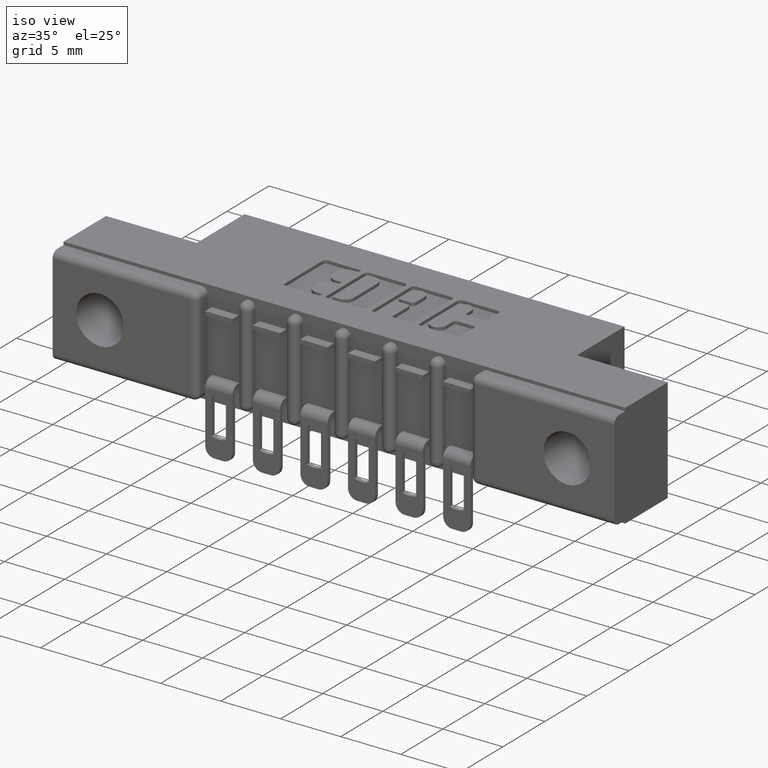
[diagram: clean part render]
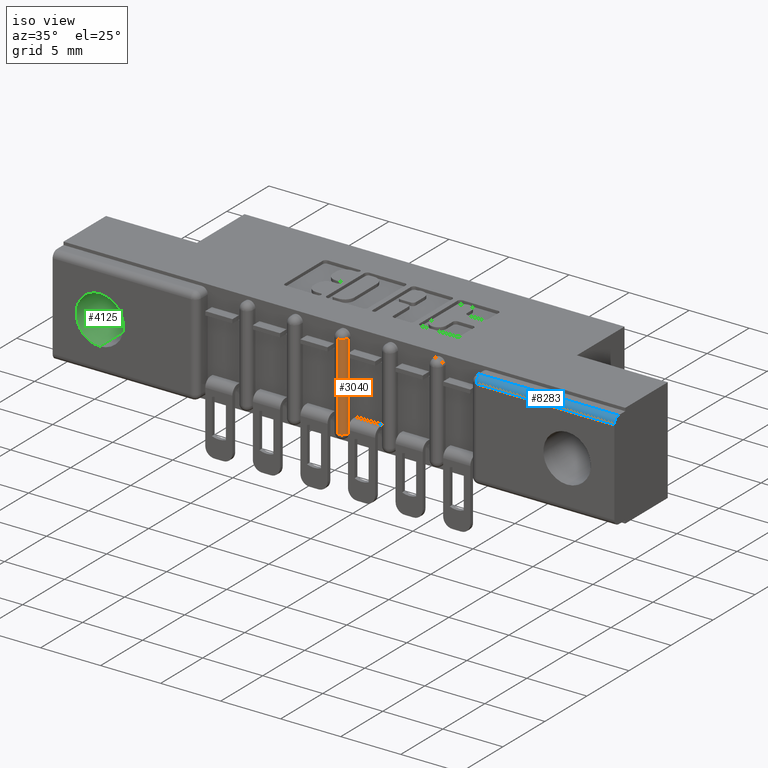
[diagram: same view with three faces highlighted in distinct colors, each labeled with its STEP entity id]
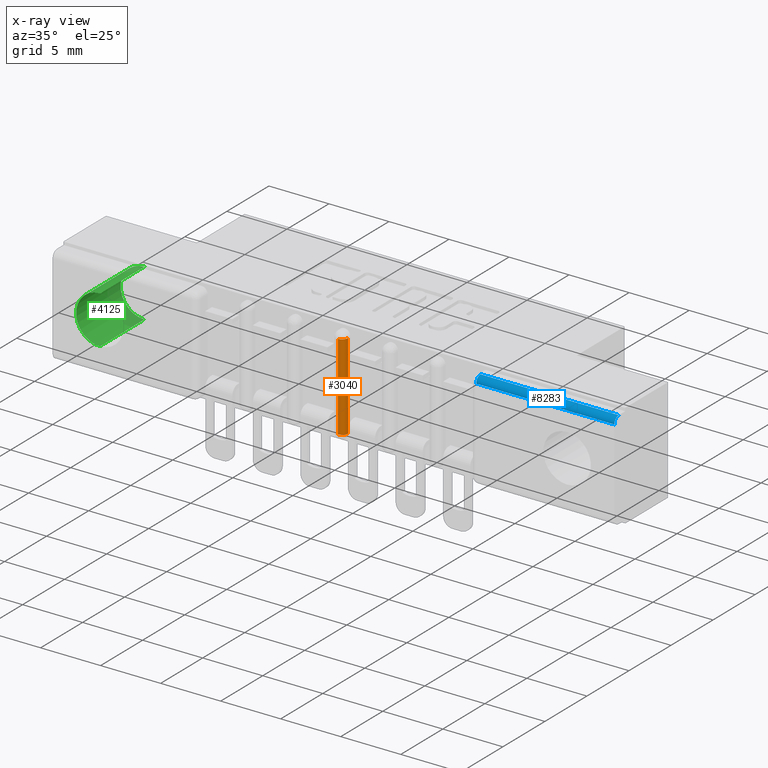
[diagram: x-ray of the same camera — body ghosted, the three highlighted faces saturated]
A machine part, iso view with three faces highlighted in distinct colors.
The next image is the same camera in x-ray (body ghosted, the three faces saturated) — at least one of them is partly hidden behind the body in this view.
Their STEP definitions:

[orange] entity #3040 — the highlighted cylindrical surface (edge-blend (fillet) strip) has radius 0.508 mm, axis along (0, 0, -1).
#59 = ORIENTED_EDGE ( 'NONE', *, *, #1088, .F. ) ;
#301 = CARTESIAN_POINT ( 'NONE',  ( 0.9210000000000000400, 0.02000000000000000000, -0.02999999999999923200 ) ) ;
#445 = DIRECTION ( 'NONE',  ( -1.592914282019978200E-015, 0.0000000000000000000, 1.000000000000000000 ) ) ;
#907 = ORIENTED_EDGE ( 'NONE', *, *, #6555, .T. ) ;
#1088 = EDGE_CURVE ( 'NONE', #3003, #4904, #9586, .T. ) ;
#1320 = CARTESIAN_POINT ( 'NONE',  ( 0.9209999999999998200, 0.02000000000000000000, -0.02999999999999927000 ) ) ;
#1385 = EDGE_CURVE ( 'NONE', #10407, #3003, #9571, .T. ) ;
#1405 = CARTESIAN_POINT ( 'NONE',  ( 0.9410000000000003900, 0.04000000000000000100, -0.3130000000000007200 ) ) ;
#1850 = CYLINDRICAL_SURFACE ( 'NONE', #4489, 0.02000000000000005900 ) ;
#2426 = ORIENTED_EDGE ( 'NONE', *, *, #8079, .F. ) ;
#2480 = CARTESIAN_POINT ( 'NONE',  ( 0.9210000000000006000, 0.02000000000000000000, -0.3130000000000006700 ) ) ;
#2812 = DIRECTION ( 'NONE',  ( 1.592914282019978000E-015, 0.0000000000000000000, -1.000000000000000000 ) ) ;
#3003 = VERTEX_POINT ( 'NONE', #5206 ) ;
#3040 = ADVANCED_FACE ( 'NONE', ( #6895 ), #1850, .T. ) ;
#3247 = EDGE_LOOP ( 'NONE', ( #59, #3863, #907, #2426 ) ) ;
#3617 = CARTESIAN_POINT ( 'NONE',  ( 0.9409999999999997300, 0.04000000000000000100, -0.02999999999999927000 ) ) ;
#3639 = DIRECTION ( 'NONE',  ( -1.000000000000000000, 0.0000000000000000000, -1.707404996040159400E-015 ) ) ;
#3863 = ORIENTED_EDGE ( 'NONE', *, *, #1385, .F. ) ;
#4284 = AXIS2_PLACEMENT_3D ( 'NONE', #10272, #9401, #3639 ) ;
#4489 = AXIS2_PLACEMENT_3D ( 'NONE', #7923, #2812, #6076 ) ;
#4773 = VECTOR ( 'NONE', #445, 39.37007874015748100 ) ;
#4904 = VERTEX_POINT ( 'NONE', #2480 ) ;
#5129 = VERTEX_POINT ( 'NONE', #301 ) ;
#5206 = CARTESIAN_POINT ( 'NONE',  ( 0.9410000000000002800, 0.04000000000000000100, -0.3130000000000007200 ) ) ;
#5373 = DIRECTION ( 'NONE',  ( -1.000000000000000000, 0.0000000000000000000, 0.0000000000000000000 ) ) ;
#6076 = DIRECTION ( 'NONE',  ( -1.000000000000000000, 0.0000000000000000000, 0.0000000000000000000 ) ) ;
#6555 = EDGE_CURVE ( 'NONE', #10407, #5129, #8241, .T. ) ;
#6782 = VECTOR ( 'NONE', #9919, 39.37007874015748100 ) ;
#6895 = FACE_OUTER_BOUND ( 'NONE', #3247, .T. ) ;
#6945 = CARTESIAN_POINT ( 'NONE',  ( 0.9210000000000003700, 0.04000000000000000100, -0.3130000000000007200 ) ) ;
#7040 = LINE ( 'NONE', #1320, #4773 ) ;
#7923 = CARTESIAN_POINT ( 'NONE',  ( 0.9210000000000003700, 0.04000000000000000100, -0.3430000000000001400 ) ) ;
#8079 = EDGE_CURVE ( 'NONE', #4904, #5129, #7040, .T. ) ;
#8241 = CIRCLE ( 'NONE', #4284, 0.02000000000000005900 ) ;
#8674 = DIRECTION ( 'NONE',  ( 0.0000000000000000000, -0.0000000000000000000, -1.000000000000000000 ) ) ;
#9171 = AXIS2_PLACEMENT_3D ( 'NONE', #6945, #8674, #5373 ) ;
#9401 = DIRECTION ( 'NONE',  ( 1.707404996040159200E-015, 6.996556369206972900E-029, -1.000000000000000000 ) ) ;
#9571 = LINE ( 'NONE', #1405, #6782 ) ;
#9586 = CIRCLE ( 'NONE', #9171, 0.02000000000000005900 ) ;
#9919 = DIRECTION ( 'NONE',  ( 1.592914282019978200E-015, -0.0000000000000000000, -1.000000000000000000 ) ) ;
#10272 = CARTESIAN_POINT ( 'NONE',  ( 0.9209999999999990400, 0.04000000000000000100, -0.02999999999999930500 ) ) ;
#10407 = VERTEX_POINT ( 'NONE', #3617 ) ;

[blue] entity #8283 — the highlighted cylindrical surface (edge-blend (fillet) strip) has radius 0.508 mm, axis along (-1, 0, 0).
#17 = DIRECTION ( 'NONE',  ( -1.000000000000000000, 0.0000000000000000000, 0.0000000000000000000 ) ) ;
#589 = DIRECTION ( 'NONE',  ( -1.000000000000000000, 0.0000000000000000000, 0.0000000000000000000 ) ) ;
#1308 = ORIENTED_EDGE ( 'NONE', *, *, #4404, .F. ) ;
#1354 = CARTESIAN_POINT ( 'NONE',  ( 1.389000000000000500, 0.02000000000000000000, -0.03000000000000008900 ) ) ;
#1613 = DIRECTION ( 'NONE',  ( -1.000000000000000000, 0.0000000000000000000, 0.0000000000000000000 ) ) ;
#1817 = ORIENTED_EDGE ( 'NONE', *, *, #10838, .F. ) ;
#1821 = CARTESIAN_POINT ( 'NONE',  ( 1.389000000000000500, 0.02000000000000000000, -0.01000000000000006400 ) ) ;
#2209 = DIRECTION ( 'NONE',  ( 0.0000000000000000000, 0.0000000000000000000, 1.000000000000000000 ) ) ;
#2310 = DIRECTION ( 'NONE',  ( 0.0000000000000000000, 0.0000000000000000000, 1.000000000000000000 ) ) ;
#2643 = CARTESIAN_POINT ( 'NONE',  ( 1.389000000000000500, 0.0000000000000000000, -0.03000000000000008900 ) ) ;
#3046 = AXIS2_PLACEMENT_3D ( 'NONE', #1354, #589, #2209 ) ;
#3259 = DIRECTION ( 'NONE',  ( 1.000000000000000000, -0.0000000000000000000, -0.0000000000000000000 ) ) ;
#3325 = FACE_OUTER_BOUND ( 'NONE', #5285, .T. ) ;
#3812 = CIRCLE ( 'NONE', #3046, 0.02000000000000000000 ) ;
#3953 = VERTEX_POINT ( 'NONE', #9995 ) ;
#4102 = CARTESIAN_POINT ( 'NONE',  ( 0.0000000000000000000, 0.0000000000000000000, -0.03000000000000008900 ) ) ;
#4275 = VERTEX_POINT ( 'NONE', #1821 ) ;
#4404 = EDGE_CURVE ( 'NONE', #4275, #8835, #9383, .T. ) ;
#4654 = CYLINDRICAL_SURFACE ( 'NONE', #5839, 0.02000000000000000000 ) ;
#4711 = DIRECTION ( 'NONE',  ( 1.000000000000000000, -0.0000000000000000000, -0.0000000000000000000 ) ) ;
#4883 = DIRECTION ( 'NONE',  ( 0.0000000000000000000, 0.0000000000000000000, 1.000000000000000000 ) ) ;
#5000 = VECTOR ( 'NONE', #4711, 39.37007874015748100 ) ;
#5274 = VECTOR ( 'NONE', #1613, 39.37007874015748100 ) ;
#5285 = EDGE_LOOP ( 'NONE', ( #6051, #1308, #8797, #1817 ) ) ;
#5766 = VERTEX_POINT ( 'NONE', #2643 ) ;
#5839 = AXIS2_PLACEMENT_3D ( 'NONE', #6936, #17, #2310 ) ;
#6051 = ORIENTED_EDGE ( 'NONE', *, *, #7289, .F. ) ;
#6936 = CARTESIAN_POINT ( 'NONE',  ( 0.0000000000000000000, 0.02000000000000000000, -0.03000000000000008900 ) ) ;
#7060 = AXIS2_PLACEMENT_3D ( 'NONE', #10867, #3259, #4883 ) ;
#7289 = EDGE_CURVE ( 'NONE', #8835, #3953, #8476, .T. ) ;
#7368 = CARTESIAN_POINT ( 'NONE',  ( 1.842000000000000700, 0.02000000000000000000, -0.01000000000000006400 ) ) ;
#8283 = ADVANCED_FACE ( 'NONE', ( #3325 ), #4654, .T. ) ;
#8476 = CIRCLE ( 'NONE', #7060, 0.02000000000000000000 ) ;
#8797 = ORIENTED_EDGE ( 'NONE', *, *, #10750, .F. ) ;
#8835 = VERTEX_POINT ( 'NONE', #8939 ) ;
#8939 = CARTESIAN_POINT ( 'NONE',  ( 1.842000000000000700, 0.02000000000000000000, -0.01000000000000006400 ) ) ;
#9370 = LINE ( 'NONE', #4102, #5274 ) ;
#9383 = LINE ( 'NONE', #7368, #5000 ) ;
#9995 = CARTESIAN_POINT ( 'NONE',  ( 1.842000000000000700, 0.0000000000000000000, -0.03000000000000008900 ) ) ;
#10750 = EDGE_CURVE ( 'NONE', #5766, #4275, #3812, .T. ) ;
#10838 = EDGE_CURVE ( 'NONE', #3953, #5766, #9370, .T. ) ;
#10867 = CARTESIAN_POINT ( 'NONE',  ( 1.842000000000000700, 0.02000000000000000000, -0.03000000000000008900 ) ) ;

[green] entity #4125 — the highlighted cylindrical surface (edge-blend (fillet) strip) has radius 1.9812 mm, axis along (-0, -1, -0).
#381 = VERTEX_POINT ( 'NONE', #9331 ) ;
#649 = DIRECTION ( 'NONE',  ( -0.0000000000000000000, -1.000000000000000000, -0.0000000000000000000 ) ) ;
#849 = EDGE_CURVE ( 'NONE', #3821, #7855, #7451, .T. ) ;
#1639 = CARTESIAN_POINT ( 'NONE',  ( 0.1550000000000003900, 0.4729999999999999800, -0.1715000000000000700 ) ) ;
#2497 = CYLINDRICAL_SURFACE ( 'NONE', #9316, 0.07800000000000000000 ) ;
#2940 = LINE ( 'NONE', #4176, #10582 ) ;
#3363 = DIRECTION ( 'NONE',  ( -0.0000000000000000000, -1.000000000000000000, -0.0000000000000000000 ) ) ;
#3430 = VECTOR ( 'NONE', #7708, 39.37007874015748100 ) ;
#3821 = VERTEX_POINT ( 'NONE', #7310 ) ;
#4125 = ADVANCED_FACE ( 'NONE', ( #9245 ), #2497, .F. ) ;
#4176 = CARTESIAN_POINT ( 'NONE',  ( 0.1550000000000003900, 0.4729999999999999800, -0.09350000000000006900 ) ) ;
#5017 = ORIENTED_EDGE ( 'NONE', *, *, #7717, .T. ) ;
#5032 = DIRECTION ( 'NONE',  ( -0.0000000000000000000, -1.000000000000000000, -0.0000000000000000000 ) ) ;
#5224 = CARTESIAN_POINT ( 'NONE',  ( 0.1550000000000003900, 0.2079999999999999300, -0.2495000000000000600 ) ) ;
#5268 = ORIENTED_EDGE ( 'NONE', *, *, #10250, .F. ) ;
#6030 = CARTESIAN_POINT ( 'NONE',  ( 0.1550000000000003900, 0.4729999999999999800, -0.2495000000000000600 ) ) ;
#6385 = EDGE_LOOP ( 'NONE', ( #9385, #5017, #7087, #5268 ) ) ;
#6529 = DIRECTION ( 'NONE',  ( 0.0000000000000000000, 0.0000000000000000000, 1.000000000000000000 ) ) ;
#7007 = LINE ( 'NONE', #6030, #3430 ) ;
#7044 = VERTEX_POINT ( 'NONE', #9485 ) ;
#7087 = ORIENTED_EDGE ( 'NONE', *, *, #10762, .T. ) ;
#7310 = CARTESIAN_POINT ( 'NONE',  ( 0.1550000000000003900, 0.2079999999999999300, -0.09350000000000006900 ) ) ;
#7451 = CIRCLE ( 'NONE', #10090, 0.07800000000000000000 ) ;
#7534 = CARTESIAN_POINT ( 'NONE',  ( 0.1550000000000003900, 0.2079999999999999300, -0.1715000000000000700 ) ) ;
#7708 = DIRECTION ( 'NONE',  ( -0.0000000000000000000, -1.000000000000000000, -0.0000000000000000000 ) ) ;
#7717 = EDGE_CURVE ( 'NONE', #3821, #7044, #2940, .T. ) ;
#7855 = VERTEX_POINT ( 'NONE', #5224 ) ;
#8297 = DIRECTION ( 'NONE',  ( 0.0000000000000000000, -1.000000000000000000, 0.0000000000000000000 ) ) ;
#8553 = DIRECTION ( 'NONE',  ( 0.0000000000000000000, 0.0000000000000000000, -1.000000000000000000 ) ) ;
#9245 = FACE_OUTER_BOUND ( 'NONE', #6385, .T. ) ;
#9316 = AXIS2_PLACEMENT_3D ( 'NONE', #1639, #3363, #8553 ) ;
#9331 = CARTESIAN_POINT ( 'NONE',  ( 0.1550000000000003900, 0.0000000000000000000, -0.2495000000000000600 ) ) ;
#9385 = ORIENTED_EDGE ( 'NONE', *, *, #849, .F. ) ;
#9485 = CARTESIAN_POINT ( 'NONE',  ( 0.1550000000000003900, 0.0000000000000000000, -0.09350000000000006900 ) ) ;
#9502 = AXIS2_PLACEMENT_3D ( 'NONE', #9904, #8297, #10042 ) ;
#9904 = CARTESIAN_POINT ( 'NONE',  ( 0.1550000000000003900, 0.0000000000000000000, -0.1715000000000000700 ) ) ;
#10012 = CIRCLE ( 'NONE', #9502, 0.07800000000000000000 ) ;
#10042 = DIRECTION ( 'NONE',  ( 0.0000000000000000000, 0.0000000000000000000, -1.000000000000000000 ) ) ;
#10090 = AXIS2_PLACEMENT_3D ( 'NONE', #7534, #649, #6529 ) ;
#10250 = EDGE_CURVE ( 'NONE', #7855, #381, #7007, .T. ) ;
#10582 = VECTOR ( 'NONE', #5032, 39.37007874015748100 ) ;
#10762 = EDGE_CURVE ( 'NONE', #7044, #381, #10012, .T. ) ;